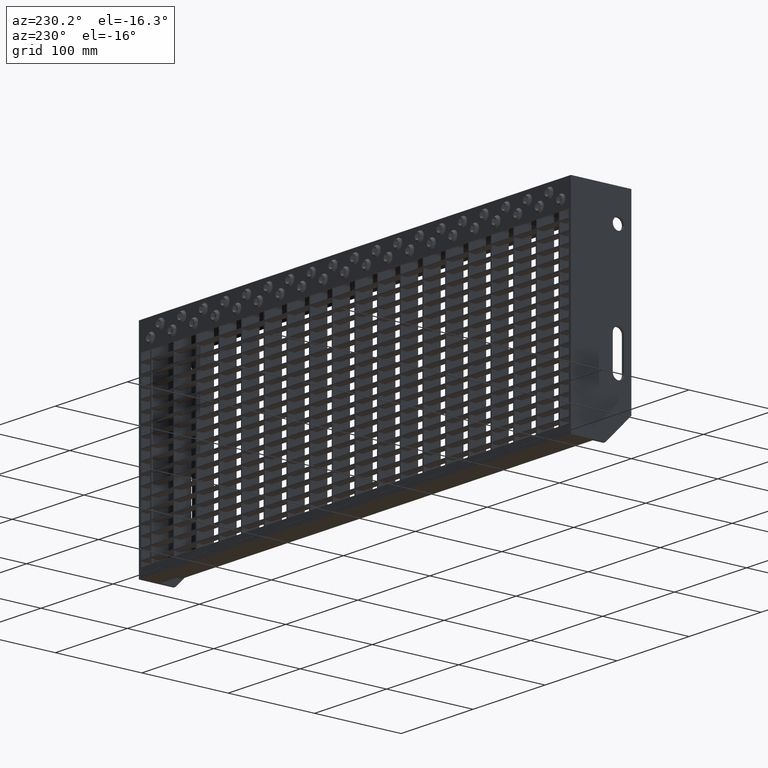
[diagram: clean part render]
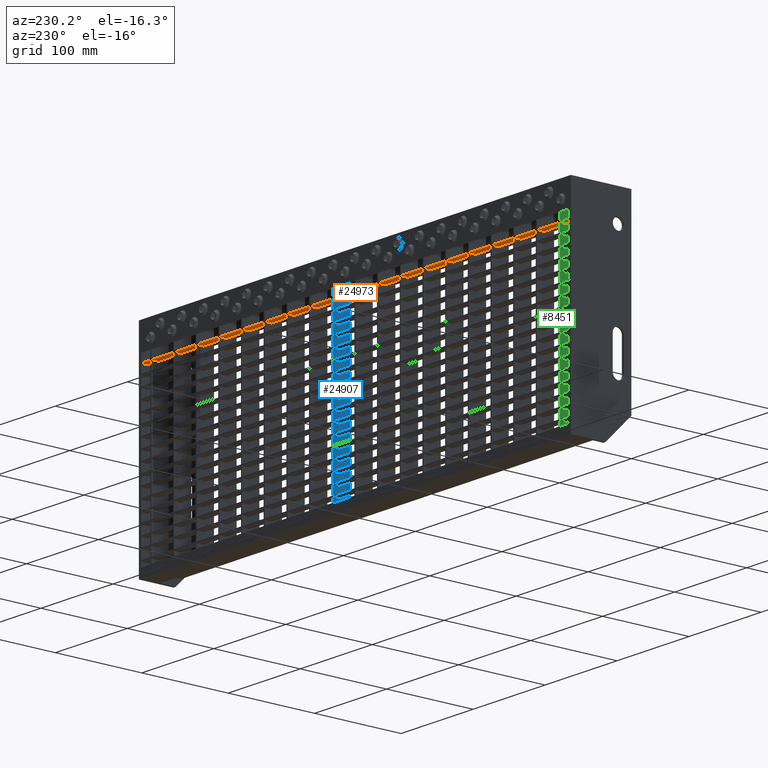
[diagram: same view with three faces highlighted in distinct colors, each labeled with its STEP entity id]
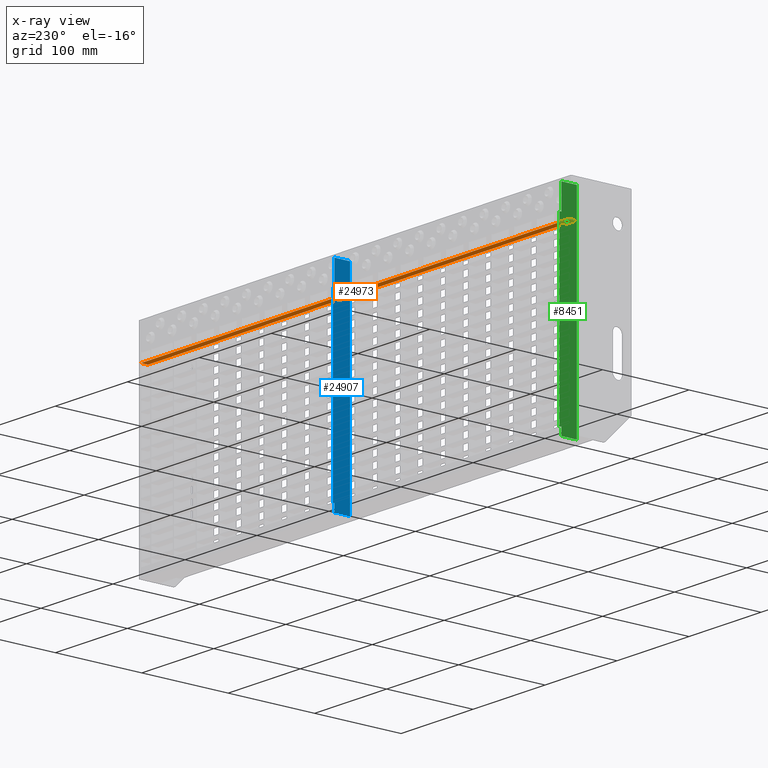
[diagram: x-ray of the same camera — body ghosted, the three highlighted faces saturated]
A machine part, auxiliary view with three faces highlighted in distinct colors.
The next image is the same camera in x-ray (body ghosted, the three faces saturated) — at least one of them is partly hidden behind the body in this view.
Their STEP definitions:

[orange] entity #24973 — the highlighted planar face has unit normal (-0, 0, 1).
#791 = VECTOR ( 'NONE', #25307, 1000.000000000000000 ) ;
#4304 = DIRECTION ( 'NONE',  ( -0.0000000000000000000, 0.0000000000000000000, 1.000000000000000000 ) ) ;
#5168 = ORIENTED_EDGE ( 'NONE', *, *, #24204, .F. ) ;
#6428 = CARTESIAN_POINT ( 'NONE',  ( 305.1394102980498800, 70.00000000000000000, -40.24999999999999300 ) ) ;
#6716 = ORIENTED_EDGE ( 'NONE', *, *, #8332, .T. ) ;
#7531 = DIRECTION ( 'NONE',  ( 0.0000000000000000000, -1.000000000000000000, 0.0000000000000000000 ) ) ;
#7936 = LINE ( 'NONE', #16725, #23629 ) ;
#8314 = PLANE ( 'NONE',  #10234 ) ;
#8332 = EDGE_CURVE ( 'NONE', #13002, #11091, #17066, .T. ) ;
#9836 = LINE ( 'NONE', #23803, #20054 ) ;
#10234 = AXIS2_PLACEMENT_3D ( 'NONE', #6428, #4304, #20734 ) ;
#10706 = CARTESIAN_POINT ( 'NONE',  ( 297.0000000000000000, 62.00000000000000700, -40.24999999999999300 ) ) ;
#11091 = VERTEX_POINT ( 'NONE', #19634 ) ;
#13002 = VERTEX_POINT ( 'NONE', #10706 ) ;
#13029 = LINE ( 'NONE', #19962, #21986 ) ;
#13388 = EDGE_CURVE ( 'NONE', #21717, #13002, #7936, .T. ) ;
#13753 = EDGE_CURVE ( 'NONE', #21717, #20375, #13029, .T. ) ;
#14975 = CARTESIAN_POINT ( 'NONE',  ( 297.0000000000000000, 70.00000000000000000, -40.24999999999999300 ) ) ;
#15404 = EDGE_LOOP ( 'NONE', ( #24630, #19499, #6716, #5168 ) ) ;
#16725 = CARTESIAN_POINT ( 'NONE',  ( 297.0000000000000000, 70.00000000000000000, -40.24999999999999300 ) ) ;
#17066 = LINE ( 'NONE', #23292, #791 ) ;
#19499 = ORIENTED_EDGE ( 'NONE', *, *, #13388, .T. ) ;
#19634 = CARTESIAN_POINT ( 'NONE',  ( -297.0000000000000000, 62.00000000000000700, -40.24999999999999300 ) ) ;
#19962 = CARTESIAN_POINT ( 'NONE',  ( 305.1394102980498800, 70.00000000000000000, -40.24999999999999300 ) ) ;
#20054 = VECTOR ( 'NONE', #7531, 1000.000000000000000 ) ;
#20375 = VERTEX_POINT ( 'NONE', #26218 ) ;
#20734 = DIRECTION ( 'NONE',  ( 1.000000000000000000, 0.0000000000000000000, 0.0000000000000000000 ) ) ;
#21717 = VERTEX_POINT ( 'NONE', #14975 ) ;
#21986 = VECTOR ( 'NONE', #22028, 1000.000000000000000 ) ;
#22028 = DIRECTION ( 'NONE',  ( -1.000000000000000000, -0.0000000000000000000, -0.0000000000000000000 ) ) ;
#23292 = CARTESIAN_POINT ( 'NONE',  ( 305.1394102980498800, 62.00000000000000700, -40.24999999999999300 ) ) ;
#23629 = VECTOR ( 'NONE', #24955, 1000.000000000000000 ) ;
#23803 = CARTESIAN_POINT ( 'NONE',  ( -297.0000000000000000, 70.00000000000000000, -40.24999999999999300 ) ) ;
#24204 = EDGE_CURVE ( 'NONE', #20375, #11091, #9836, .T. ) ;
#24630 = ORIENTED_EDGE ( 'NONE', *, *, #13753, .F. ) ;
#24955 = DIRECTION ( 'NONE',  ( 0.0000000000000000000, -1.000000000000000000, 0.0000000000000000000 ) ) ;
#24973 = ADVANCED_FACE ( 'NONE', ( #25098 ), #8314, .F. ) ;
#25098 = FACE_OUTER_BOUND ( 'NONE', #15404, .T. ) ;
#25307 = DIRECTION ( 'NONE',  ( -1.000000000000000000, -0.0000000000000000000, -0.0000000000000000000 ) ) ;
#26218 = CARTESIAN_POINT ( 'NONE',  ( -297.0000000000000000, 70.00000000000000000, -40.24999999999999300 ) ) ;

[blue] entity #24907 — the highlighted planar face has unit normal (-1, 0, 0).
#84 = PLANE ( 'NONE',  #3385 ) ;
#127 = VECTOR ( 'NONE', #15356, 1000.000000000000000 ) ;
#1071 = ORIENTED_EDGE ( 'NONE', *, *, #11958, .F. ) ;
#1475 = LINE ( 'NONE', #17564, #6255 ) ;
#1644 = VERTEX_POINT ( 'NONE', #14050 ) ;
#1779 = VECTOR ( 'NONE', #12411, 1000.000000000000000 ) ;
#1837 = LINE ( 'NONE', #24314, #22936 ) ;
#2235 = LINE ( 'NONE', #23689, #17874 ) ;
#2305 = VECTOR ( 'NONE', #8831, 1000.000000000000000 ) ;
#2309 = VERTEX_POINT ( 'NONE', #4360 ) ;
#2414 = LINE ( 'NONE', #18445, #1779 ) ;
#3385 = AXIS2_PLACEMENT_3D ( 'NONE', #20376, #6263, #20547 ) ;
#3410 = VECTOR ( 'NONE', #17887, 1000.000000000000000 ) ;
#3621 = CARTESIAN_POINT ( 'NONE',  ( 30.75000000000000000, 50.00000000000000000, -1.999999999999993600 ) ) ;
#3696 = CARTESIAN_POINT ( 'NONE',  ( 30.75000000000000000, 50.00000000000000000, -1.999999999999993600 ) ) ;
#3733 = VECTOR ( 'NONE', #9585, 1000.000000000000000 ) ;
#4360 = CARTESIAN_POINT ( 'NONE',  ( 30.75000000000000000, 50.00000000000000000, -15.00000000000000000 ) ) ;
#4450 = VECTOR ( 'NONE', #6187, 1000.000000000000000 ) ;
#5088 = VERTEX_POINT ( 'NONE', #24178 ) ;
#5237 = ORIENTED_EDGE ( 'NONE', *, *, #24789, .F. ) ;
#5741 = DIRECTION ( 'NONE',  ( 0.0000000000000000000, 0.0000000000000000000, -1.000000000000000000 ) ) ;
#5968 = VERTEX_POINT ( 'NONE', #19340 ) ;
#6167 = VERTEX_POINT ( 'NONE', #12133 ) ;
#6187 = DIRECTION ( 'NONE',  ( 0.0000000000000000000, 0.0000000000000000000, -1.000000000000000000 ) ) ;
#6211 = LINE ( 'NONE', #17402, #127 ) ;
#6255 = VECTOR ( 'NONE', #13572, 1000.000000000000000 ) ;
#6263 = DIRECTION ( 'NONE',  ( -1.000000000000000000, 0.0000000000000000000, 0.0000000000000000000 ) ) ;
#6602 = CARTESIAN_POINT ( 'NONE',  ( 30.75000000000000000, 68.00000000000000000, -29.99999999999999300 ) ) ;
#7888 = LINE ( 'NONE', #9775, #18099 ) ;
#7915 = LINE ( 'NONE', #6602, #18118 ) ;
#7951 = VERTEX_POINT ( 'NONE', #10352 ) ;
#8831 = DIRECTION ( 'NONE',  ( 0.0000000000000000000, -1.632680918566405200E-015, 1.000000000000000000 ) ) ;
#9167 = VERTEX_POINT ( 'NONE', #21801 ) ;
#9515 = VERTEX_POINT ( 'NONE', #11839 ) ;
#9585 = DIRECTION ( 'NONE',  ( 0.0000000000000000000, -1.000000000000000000, -1.204669080539449300E-016 ) ) ;
#9607 = ORIENTED_EDGE ( 'NONE', *, *, #23699, .F. ) ;
#9775 = CARTESIAN_POINT ( 'NONE',  ( 30.75000000000000000, 68.00000000000000000, -29.99999999999999300 ) ) ;
#9809 = ORIENTED_EDGE ( 'NONE', *, *, #10227, .F. ) ;
#9898 = LINE ( 'NONE', #24514, #4450 ) ;
#10227 = EDGE_CURVE ( 'NONE', #5968, #5088, #24680, .T. ) ;
#10352 = CARTESIAN_POINT ( 'NONE',  ( 30.75000000000000000, 70.00000000000011400, -229.4999999999999700 ) ) ;
#10589 = CARTESIAN_POINT ( 'NONE',  ( 30.75000000000000000, 68.00000000000011400, -13.41869858279433600 ) ) ;
#11492 = ORIENTED_EDGE ( 'NONE', *, *, #12585, .F. ) ;
#11583 = CARTESIAN_POINT ( 'NONE',  ( 30.75000000000000000, 50.00000000000000000, -238.0000000000000000 ) ) ;
#11839 = CARTESIAN_POINT ( 'NONE',  ( 30.75000000000000000, 50.00000000000000000, -1.999999999999993600 ) ) ;
#11958 = EDGE_CURVE ( 'NONE', #9167, #1644, #2235, .T. ) ;
#12133 = CARTESIAN_POINT ( 'NONE',  ( 30.74999999999989000, 68.00000000000000000, -30.00000000000000000 ) ) ;
#12372 = ORIENTED_EDGE ( 'NONE', *, *, #15158, .F. ) ;
#12411 = DIRECTION ( 'NONE',  ( -0.0000000000000000000, -0.0000000000000000000, 1.000000000000000000 ) ) ;
#12585 = EDGE_CURVE ( 'NONE', #2309, #18626, #9898, .T. ) ;
#13572 = DIRECTION ( 'NONE',  ( 0.0000000000000000000, 1.000000000000000000, 0.0000000000000000000 ) ) ;
#13578 = CARTESIAN_POINT ( 'NONE',  ( 30.75000000000000000, 50.00000000000000000, -229.4999999999999700 ) ) ;
#13640 = LINE ( 'NONE', #3621, #3410 ) ;
#14050 = CARTESIAN_POINT ( 'NONE',  ( 30.75000000000000000, 68.00000000000000000, -1.999999999999991300 ) ) ;
#14086 = CARTESIAN_POINT ( 'NONE',  ( 30.75000000000000000, 70.00000000000000000, -29.99999999999999300 ) ) ;
#14129 = ORIENTED_EDGE ( 'NONE', *, *, #14618, .F. ) ;
#14466 = ORIENTED_EDGE ( 'NONE', *, *, #16958, .F. ) ;
#14618 = EDGE_CURVE ( 'NONE', #22188, #9167, #7915, .T. ) ;
#15158 = EDGE_CURVE ( 'NONE', #6167, #22188, #7888, .T. ) ;
#15356 = DIRECTION ( 'NONE',  ( 0.0000000000000000000, -1.000000000000000000, 0.0000000000000000000 ) ) ;
#16168 = DIRECTION ( 'NONE',  ( 0.0000000000000000000, 1.000000000000000000, 0.0000000000000000000 ) ) ;
#16842 = DIRECTION ( 'NONE',  ( 0.0000000000000000000, 0.0000000000000000000, 1.000000000000000000 ) ) ;
#16958 = EDGE_CURVE ( 'NONE', #19251, #6167, #6211, .T. ) ;
#17402 = CARTESIAN_POINT ( 'NONE',  ( 30.75000000000000000, 70.00000000000000000, -29.99999999999999300 ) ) ;
#17441 = LINE ( 'NONE', #3696, #18087 ) ;
#17564 = CARTESIAN_POINT ( 'NONE',  ( 30.75000000000000000, 67.99999999999995700, -229.4999999999999700 ) ) ;
#17874 = VECTOR ( 'NONE', #25693, 1000.000000000000000 ) ;
#17886 = ORIENTED_EDGE ( 'NONE', *, *, #24346, .F. ) ;
#17887 = DIRECTION ( 'NONE',  ( 0.0000000000000000000, 0.0000000000000000000, -1.000000000000000000 ) ) ;
#18087 = VECTOR ( 'NONE', #5741, 1000.000000000000000 ) ;
#18099 = VECTOR ( 'NONE', #26190, 1000.000000000000000 ) ;
#18118 = VECTOR ( 'NONE', #16842, 1000.000000000000000 ) ;
#18445 = CARTESIAN_POINT ( 'NONE',  ( 30.75000000000000000, 70.00000000000000000, -29.99999999999999300 ) ) ;
#18626 = VERTEX_POINT ( 'NONE', #13578 ) ;
#19251 = VERTEX_POINT ( 'NONE', #14086 ) ;
#19340 = CARTESIAN_POINT ( 'NONE',  ( 30.75000000000000000, 67.99999999999997200, -238.0000000000000000 ) ) ;
#20376 = CARTESIAN_POINT ( 'NONE',  ( 30.75000000000000000, 0.0000000000000000000, 0.0000000000000000000 ) ) ;
#20547 = DIRECTION ( 'NONE',  ( 0.0000000000000000000, 0.0000000000000000000, 1.000000000000000000 ) ) ;
#20711 = ORIENTED_EDGE ( 'NONE', *, *, #25139, .F. ) ;
#20882 = CARTESIAN_POINT ( 'NONE',  ( 30.75000000000000000, 67.99999999999997200, -238.0000000000000000 ) ) ;
#21623 = EDGE_LOOP ( 'NONE', ( #14466, #23492, #20711, #9809, #17886, #22376, #11492, #9607, #5237, #1071, #14129, #12372 ) ) ;
#21801 = CARTESIAN_POINT ( 'NONE',  ( 30.75000000000000000, 68.00000000000000000, -6.581301417205663600 ) ) ;
#21819 = CARTESIAN_POINT ( 'NONE',  ( 30.75000000000000000, 68.00000000000000000, -1.999999999999991300 ) ) ;
#22188 = VERTEX_POINT ( 'NONE', #10589 ) ;
#22376 = ORIENTED_EDGE ( 'NONE', *, *, #24839, .F. ) ;
#22905 = FACE_OUTER_BOUND ( 'NONE', #21623, .T. ) ;
#22936 = VECTOR ( 'NONE', #16168, 1000.000000000000000 ) ;
#23492 = ORIENTED_EDGE ( 'NONE', *, *, #25358, .F. ) ;
#23570 = LINE ( 'NONE', #21819, #3733 ) ;
#23656 = VERTEX_POINT ( 'NONE', #11583 ) ;
#23689 = CARTESIAN_POINT ( 'NONE',  ( 30.75000000000000000, 68.00000000000000000, -29.99999999999999300 ) ) ;
#23699 = EDGE_CURVE ( 'NONE', #9515, #2309, #13640, .T. ) ;
#24178 = CARTESIAN_POINT ( 'NONE',  ( 30.75000000000000000, 67.99999999999995700, -229.4999999999999700 ) ) ;
#24314 = CARTESIAN_POINT ( 'NONE',  ( 30.75000000000000000, 50.00000000000000000, -238.0000000000000000 ) ) ;
#24346 = EDGE_CURVE ( 'NONE', #23656, #5968, #1837, .T. ) ;
#24514 = CARTESIAN_POINT ( 'NONE',  ( 30.75000000000000000, 50.00000000000000000, -1.999999999999993600 ) ) ;
#24680 = LINE ( 'NONE', #20882, #2305 ) ;
#24789 = EDGE_CURVE ( 'NONE', #1644, #9515, #23570, .T. ) ;
#24839 = EDGE_CURVE ( 'NONE', #18626, #23656, #17441, .T. ) ;
#24907 = ADVANCED_FACE ( 'NONE', ( #22905 ), #84, .T. ) ;
#25139 = EDGE_CURVE ( 'NONE', #5088, #7951, #1475, .T. ) ;
#25358 = EDGE_CURVE ( 'NONE', #7951, #19251, #2414, .T. ) ;
#25693 = DIRECTION ( 'NONE',  ( 0.0000000000000000000, 0.0000000000000000000, 1.000000000000000000 ) ) ;
#26190 = DIRECTION ( 'NONE',  ( 0.0000000000000000000, 0.0000000000000000000, 1.000000000000000000 ) ) ;

[green] entity #8451 — the highlighted planar face has unit normal (-1, 0, 0).
#445 = CARTESIAN_POINT ( 'NONE',  ( -284.2499999999999400, 67.99999999999997200, -238.0000000000000000 ) ) ;
#808 = CARTESIAN_POINT ( 'NONE',  ( -284.2499999999999400, 50.00000000000000000, -238.0000000000000000 ) ) ;
#1296 = DIRECTION ( 'NONE',  ( -1.000000000000000000, 0.0000000000000000000, 0.0000000000000000000 ) ) ;
#1436 = ORIENTED_EDGE ( 'NONE', *, *, #10998, .F. ) ;
#2159 = EDGE_CURVE ( 'NONE', #16888, #14890, #3188, .T. ) ;
#2449 = VECTOR ( 'NONE', #18073, 1000.000000000000000 ) ;
#2547 = VECTOR ( 'NONE', #14622, 1000.000000000000000 ) ;
#2740 = CARTESIAN_POINT ( 'NONE',  ( -284.2499999999999400, 68.00000000000000000, -1.999999999999991300 ) ) ;
#3188 = LINE ( 'NONE', #14704, #2547 ) ;
#3391 = VERTEX_POINT ( 'NONE', #10324 ) ;
#4187 = CARTESIAN_POINT ( 'NONE',  ( -284.2499999999999400, 68.00000000000000000, -29.99999999999999300 ) ) ;
#4212 = CARTESIAN_POINT ( 'NONE',  ( -284.2499999999999400, 67.99999999999995700, -229.4999999999999700 ) ) ;
#4254 = ORIENTED_EDGE ( 'NONE', *, *, #26437, .F. ) ;
#4348 = LINE ( 'NONE', #22681, #26057 ) ;
#5100 = EDGE_CURVE ( 'NONE', #24682, #5777, #19388, .T. ) ;
#5210 = CARTESIAN_POINT ( 'NONE',  ( -284.2499999999999400, 50.00000000000000000, -1.999999999999993600 ) ) ;
#5777 = VERTEX_POINT ( 'NONE', #6658 ) ;
#5832 = VERTEX_POINT ( 'NONE', #2740 ) ;
#5841 = CARTESIAN_POINT ( 'NONE',  ( -284.2499999999999400, 70.00000000000000000, -29.99999999999999300 ) ) ;
#6181 = VECTOR ( 'NONE', #19503, 1000.000000000000000 ) ;
#6229 = DIRECTION ( 'NONE',  ( 0.0000000000000000000, 0.0000000000000000000, 1.000000000000000000 ) ) ;
#6658 = CARTESIAN_POINT ( 'NONE',  ( -284.2499999999999400, 68.00000000000000000, -29.99999999999999300 ) ) ;
#7203 = EDGE_CURVE ( 'NONE', #18839, #16888, #10978, .T. ) ;
#7636 = VECTOR ( 'NONE', #6229, 1000.000000000000000 ) ;
#7970 = EDGE_CURVE ( 'NONE', #5832, #18839, #4348, .T. ) ;
#8438 = VECTOR ( 'NONE', #14048, 1000.000000000000000 ) ;
#8441 = EDGE_LOOP ( 'NONE', ( #22152, #1436, #4254, #19168, #20835, #24992, #14171, #10969 ) ) ;
#8451 = ADVANCED_FACE ( 'NONE', ( #14535 ), #13525, .T. ) ;
#8663 = VECTOR ( 'NONE', #15258, 1000.000000000000000 ) ;
#8783 = EDGE_CURVE ( 'NONE', #14890, #11700, #13563, .T. ) ;
#10324 = CARTESIAN_POINT ( 'NONE',  ( -284.2499999999999400, 70.00000000000000000, -229.4999999999999700 ) ) ;
#10449 = DIRECTION ( 'NONE',  ( 0.0000000000000000000, -1.000000000000000000, -1.204669080539449300E-016 ) ) ;
#10969 = ORIENTED_EDGE ( 'NONE', *, *, #21521, .F. ) ;
#10978 = LINE ( 'NONE', #5210, #6181 ) ;
#10998 = EDGE_CURVE ( 'NONE', #3391, #24682, #24949, .T. ) ;
#11700 = VERTEX_POINT ( 'NONE', #4212 ) ;
#12006 = CARTESIAN_POINT ( 'NONE',  ( -284.2499999999999400, 67.99999999999995700, -229.4999999999999700 ) ) ;
#13079 = CARTESIAN_POINT ( 'NONE',  ( -284.2499999999999400, 67.99999999999997200, -238.0000000000000000 ) ) ;
#13525 = PLANE ( 'NONE',  #17269 ) ;
#13563 = LINE ( 'NONE', #445, #23817 ) ;
#14048 = DIRECTION ( 'NONE',  ( 0.0000000000000000000, 1.000000000000000000, 0.0000000000000000000 ) ) ;
#14171 = ORIENTED_EDGE ( 'NONE', *, *, #7970, .F. ) ;
#14535 = FACE_OUTER_BOUND ( 'NONE', #8441, .T. ) ;
#14622 = DIRECTION ( 'NONE',  ( 0.0000000000000000000, 1.000000000000000000, 0.0000000000000000000 ) ) ;
#14704 = CARTESIAN_POINT ( 'NONE',  ( -284.2499999999999400, 50.00000000000000000, -238.0000000000000000 ) ) ;
#14890 = VERTEX_POINT ( 'NONE', #13079 ) ;
#15258 = DIRECTION ( 'NONE',  ( -0.0000000000000000000, -0.0000000000000000000, 1.000000000000000000 ) ) ;
#15554 = DIRECTION ( 'NONE',  ( 0.0000000000000000000, 0.0000000000000000000, 1.000000000000000000 ) ) ;
#16888 = VERTEX_POINT ( 'NONE', #808 ) ;
#17269 = AXIS2_PLACEMENT_3D ( 'NONE', #21661, #1296, #15554 ) ;
#18073 = DIRECTION ( 'NONE',  ( 0.0000000000000000000, -1.000000000000000000, 0.0000000000000000000 ) ) ;
#18455 = CARTESIAN_POINT ( 'NONE',  ( -284.2499999999999400, 50.00000000000000000, -1.999999999999993600 ) ) ;
#18839 = VERTEX_POINT ( 'NONE', #18455 ) ;
#18843 = DIRECTION ( 'NONE',  ( 0.0000000000000000000, -1.632680918566405200E-015, 1.000000000000000000 ) ) ;
#19168 = ORIENTED_EDGE ( 'NONE', *, *, #8783, .F. ) ;
#19388 = LINE ( 'NONE', #5841, #2449 ) ;
#19503 = DIRECTION ( 'NONE',  ( 0.0000000000000000000, 0.0000000000000000000, -1.000000000000000000 ) ) ;
#20835 = ORIENTED_EDGE ( 'NONE', *, *, #2159, .F. ) ;
#21521 = EDGE_CURVE ( 'NONE', #5777, #5832, #24584, .T. ) ;
#21661 = CARTESIAN_POINT ( 'NONE',  ( -284.2499999999999400, 0.0000000000000000000, 0.0000000000000000000 ) ) ;
#22152 = ORIENTED_EDGE ( 'NONE', *, *, #5100, .F. ) ;
#22681 = CARTESIAN_POINT ( 'NONE',  ( -284.2499999999999400, 68.00000000000000000, -1.999999999999991300 ) ) ;
#23094 = CARTESIAN_POINT ( 'NONE',  ( -284.2499999999999400, 70.00000000000000000, -29.99999999999999300 ) ) ;
#23234 = CARTESIAN_POINT ( 'NONE',  ( -284.2499999999999400, 70.00000000000000000, -29.99999999999999300 ) ) ;
#23817 = VECTOR ( 'NONE', #18843, 1000.000000000000000 ) ;
#24584 = LINE ( 'NONE', #4187, #7636 ) ;
#24682 = VERTEX_POINT ( 'NONE', #23094 ) ;
#24724 = LINE ( 'NONE', #12006, #8438 ) ;
#24949 = LINE ( 'NONE', #23234, #8663 ) ;
#24992 = ORIENTED_EDGE ( 'NONE', *, *, #7203, .F. ) ;
#26057 = VECTOR ( 'NONE', #10449, 1000.000000000000000 ) ;
#26437 = EDGE_CURVE ( 'NONE', #11700, #3391, #24724, .T. ) ;